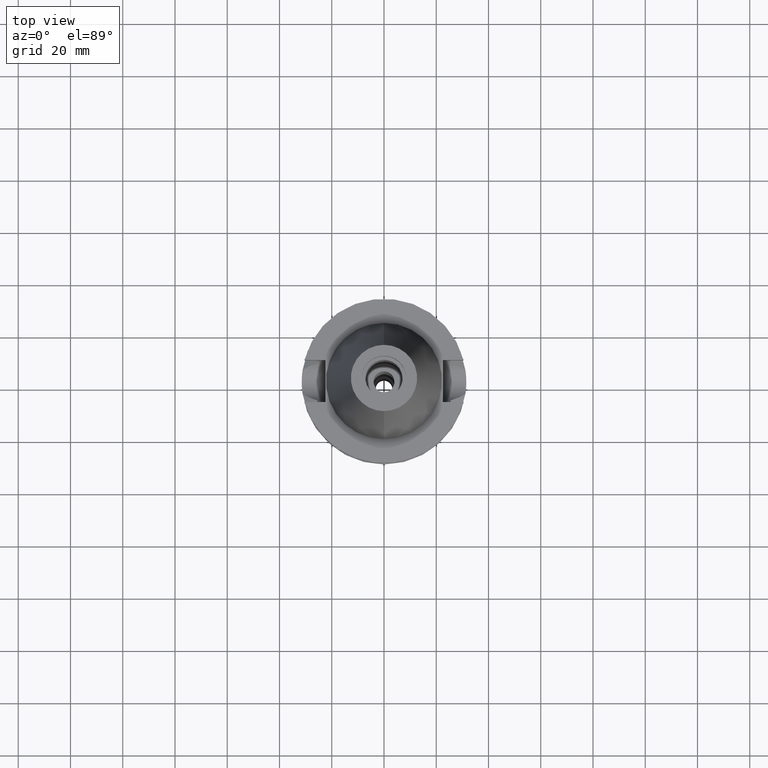
[diagram: clean part render]
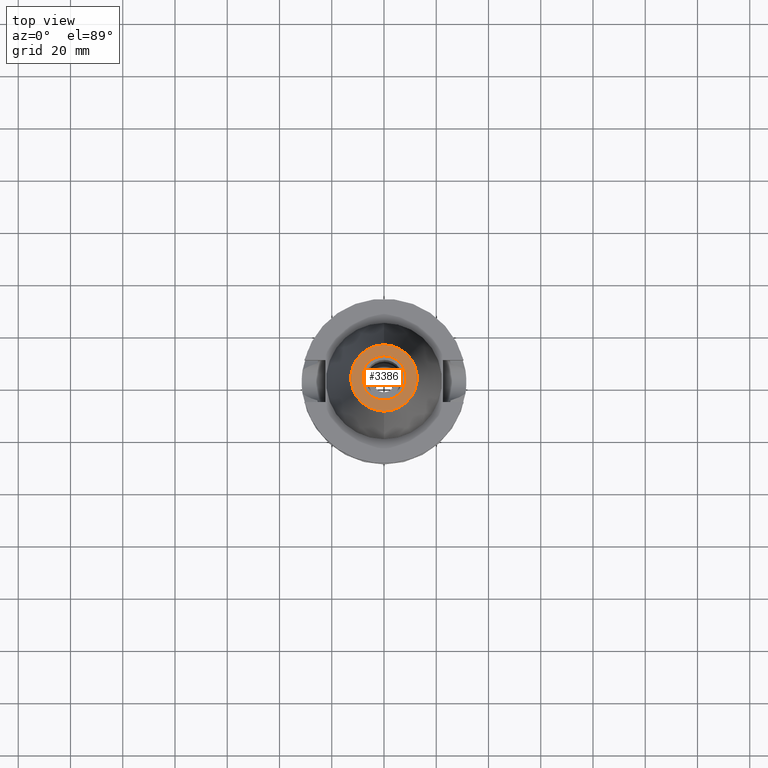
[diagram: same view with one face highlighted and labeled with its STEP entity id]
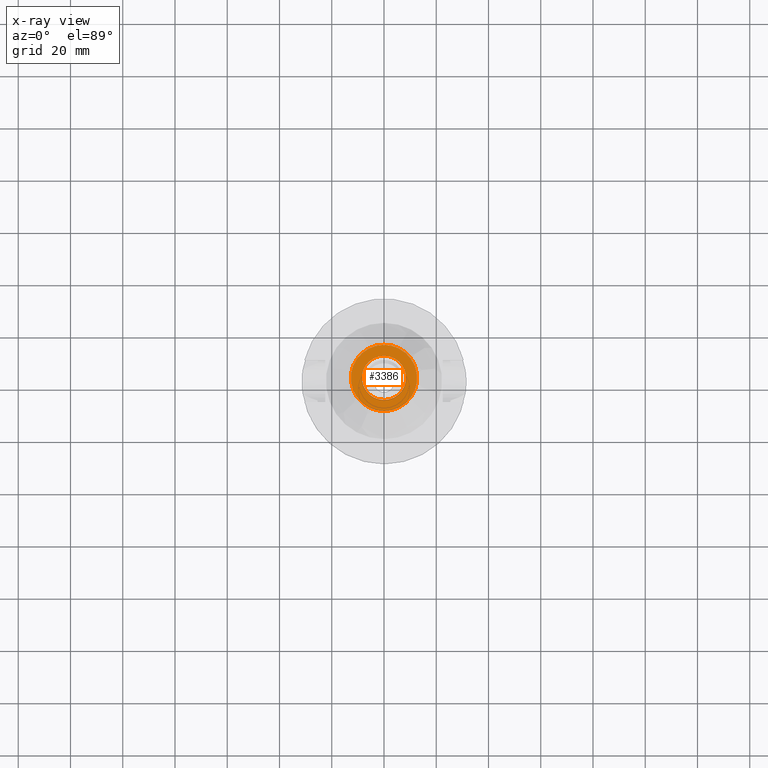
[diagram: x-ray of the same camera — body ghosted, the highlighted face saturated]
A machine part, top view. The second image highlights one B-rep face of the part: STEP entity #3386.
The next image is the same camera in x-ray: the body ghosted, the highlighted face saturated — about 0% of this face is hidden behind the body in this view.
In plain terms, the highlighted planar face has unit normal (0, 0, -1).
Its self-contained STEP definition (entity closure, byte-faithful):
#42 = AXIS2_PLACEMENT_3D ( 'NONE', #2820, #1469, #2532 ) ;
#74 = FACE_BOUND ( 'NONE', #1587, .T. ) ;
#94 = CARTESIAN_POINT ( 'NONE',  ( 0.0000000000000000000, 8.500000000000000000, 65.40000000000000568 ) ) ;
#117 = ORIENTED_EDGE ( 'NONE', *, *, #2800, .F. ) ;
#143 = ORIENTED_EDGE ( 'NONE', *, *, #2141, .F. ) ;
#383 = EDGE_LOOP ( 'NONE', ( #607, #2061 ) ) ;
#403 = DIRECTION ( 'NONE',  ( 0.0000000000000000000, -1.000000000000000000, 0.0000000000000000000 ) ) ;
#481 = AXIS2_PLACEMENT_3D ( 'NONE', #3084, #1721, #911 ) ;
#537 = CARTESIAN_POINT ( 'NONE',  ( 0.0000000000000000000, 1.625106302469000024E-14, 65.40000000000000568 ) ) ;
#607 = ORIENTED_EDGE ( 'NONE', *, *, #2321, .F. ) ;
#624 = CARTESIAN_POINT ( 'NONE',  ( 0.0000000000000000000, 2.185014819038999686E-14, 65.40000000000000568 ) ) ;
#693 = CARTESIAN_POINT ( 'NONE',  ( 0.0000000000000000000, -12.68766899429999917, 65.40000000000000568 ) ) ;
#817 = DIRECTION ( 'NONE',  ( 0.0000000000000000000, 0.0000000000000000000, -1.000000000000000000 ) ) ;
#911 = DIRECTION ( 'NONE',  ( 0.0000000000000000000, -1.000000000000000000, 0.0000000000000000000 ) ) ;
#958 = CARTESIAN_POINT ( 'NONE',  ( 0.0000000000000000000, 12.68766899429999917, 65.40000000000000568 ) ) ;
#1104 = CIRCLE ( 'NONE', #481, 8.500000000000000000 ) ;
#1279 = AXIS2_PLACEMENT_3D ( 'NONE', #537, #817, #3012 ) ;
#1329 = VERTEX_POINT ( 'NONE', #693 ) ;
#1366 = EDGE_CURVE ( 'NONE', #1329, #1722, #1576, .T. ) ;
#1469 = DIRECTION ( 'NONE',  ( 0.0000000000000000000, 0.0000000000000000000, -1.000000000000000000 ) ) ;
#1498 = PLANE ( 'NONE',  #2005 ) ;
#1576 = CIRCLE ( 'NONE', #1279, 12.68766899429999917 ) ;
#1587 = EDGE_LOOP ( 'NONE', ( #143, #117 ) ) ;
#1647 = AXIS2_PLACEMENT_3D ( 'NONE', #624, #3072, #2277 ) ;
#1721 = DIRECTION ( 'NONE',  ( 0.0000000000000000000, 0.0000000000000000000, 1.000000000000000000 ) ) ;
#1722 = VERTEX_POINT ( 'NONE', #958 ) ;
#1777 = DIRECTION ( 'NONE',  ( 0.0000000000000000000, 0.0000000000000000000, -1.000000000000000000 ) ) ;
#1854 = VERTEX_POINT ( 'NONE', #94 ) ;
#2005 = AXIS2_PLACEMENT_3D ( 'NONE', #2618, #1777, #403 ) ;
#2061 = ORIENTED_EDGE ( 'NONE', *, *, #1366, .F. ) ;
#2141 = EDGE_CURVE ( 'NONE', #1854, #2308, #2760, .T. ) ;
#2159 = CIRCLE ( 'NONE', #42, 12.68766899429999917 ) ;
#2277 = DIRECTION ( 'NONE',  ( 0.0000000000000000000, 1.000000000000000000, 0.0000000000000000000 ) ) ;
#2308 = VERTEX_POINT ( 'NONE', #2568 ) ;
#2321 = EDGE_CURVE ( 'NONE', #1722, #1329, #2159, .T. ) ;
#2532 = DIRECTION ( 'NONE',  ( 0.0000000000000000000, 1.000000000000000000, 0.0000000000000000000 ) ) ;
#2568 = CARTESIAN_POINT ( 'NONE',  ( 0.0000000000000000000, -8.500000000000000000, 65.40000000000000568 ) ) ;
#2594 = FACE_OUTER_BOUND ( 'NONE', #383, .T. ) ;
#2618 = CARTESIAN_POINT ( 'NONE',  ( 0.0000000000000000000, 2.025565805790000122E-14, 65.40000000000000568 ) ) ;
#2760 = CIRCLE ( 'NONE', #1647, 8.500000000000000000 ) ;
#2800 = EDGE_CURVE ( 'NONE', #2308, #1854, #1104, .T. ) ;
#2820 = CARTESIAN_POINT ( 'NONE',  ( 0.0000000000000000000, 1.625106302469000024E-14, 65.40000000000000568 ) ) ;
#3012 = DIRECTION ( 'NONE',  ( 0.0000000000000000000, -1.000000000000000000, 0.0000000000000000000 ) ) ;
#3072 = DIRECTION ( 'NONE',  ( 0.0000000000000000000, 0.0000000000000000000, 1.000000000000000000 ) ) ;
#3084 = CARTESIAN_POINT ( 'NONE',  ( 0.0000000000000000000, 2.185014819038999686E-14, 65.40000000000000568 ) ) ;
#3386 = ADVANCED_FACE ( 'NONE', ( #2594, #74 ), #1498, .F. ) ;